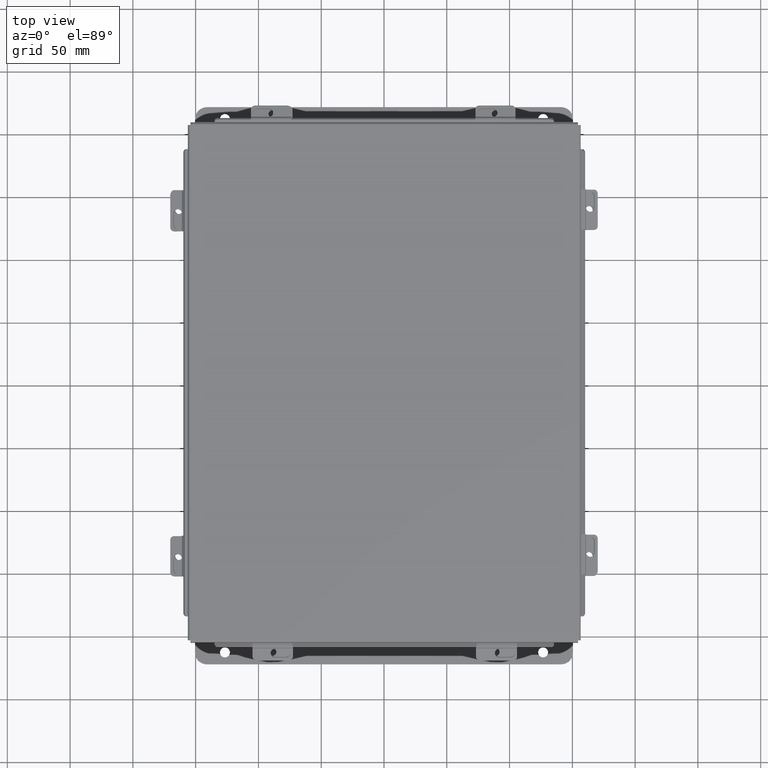
[diagram: clean part render]
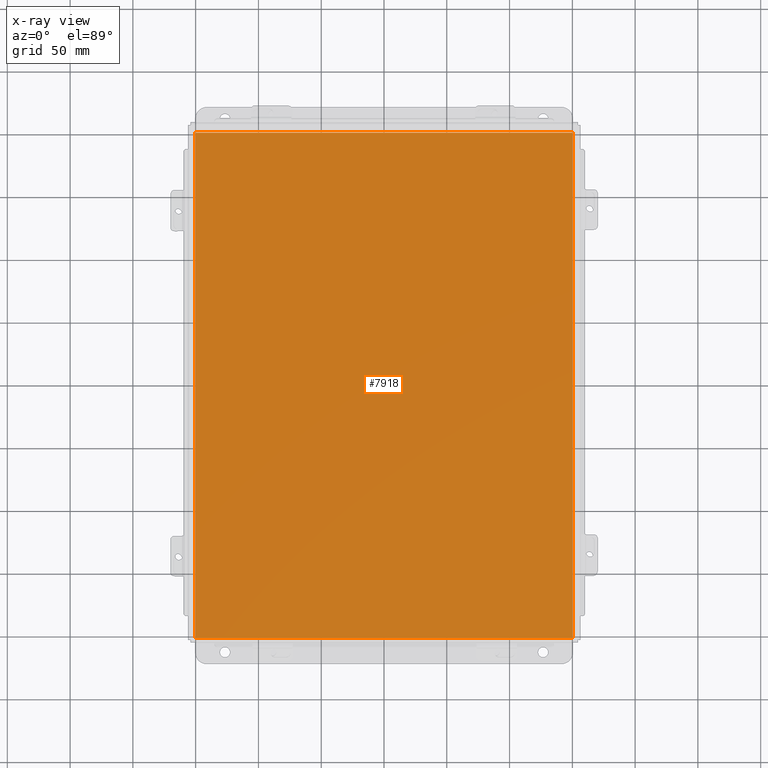
[diagram: x-ray — body ghosted, one internal face saturated and labeled with its STEP entity id]
A machine part, top view, then the same camera in x-ray: the body is ghosted and one INTERNAL B-rep face — a face not visible from any outside direction — is saturated and labeled: STEP entity #7918.
In plain terms, the highlighted planar face has unit normal (0, 0, -1).
Its self-contained STEP definition (entity closure, byte-faithful):
#53 = EDGE_CURVE ( 'NONE', #3757, #3240, #5324, .T. ) ;
#78 = CARTESIAN_POINT ( 'NONE',  ( -5.912300000000000100, -7.925300000000000000, 4.268512490100411300E-017 ) ) ;
#87 = VECTOR ( 'NONE', #4048, 39.37007874015748100 ) ;
#178 = VERTEX_POINT ( 'NONE', #1678 ) ;
#311 = ORIENTED_EDGE ( 'NONE', *, *, #6004, .F. ) ;
#346 = PLANE ( 'NONE',  #4951 ) ;
#597 = EDGE_CURVE ( 'NONE', #4805, #3240, #4528, .T. ) ;
#1678 = CARTESIAN_POINT ( 'NONE',  ( 5.912300000000000100, -7.925300000000000000, 4.268512490100411300E-017 ) ) ;
#1813 = ORIENTED_EDGE ( 'NONE', *, *, #2202, .T. ) ;
#1846 = DIRECTION ( 'NONE',  ( -1.000000000000000000, 0.0000000000000000000, -0.0000000000000000000 ) ) ;
#2035 = FACE_OUTER_BOUND ( 'NONE', #7515, .T. ) ;
#2182 = DIRECTION ( 'NONE',  ( -1.000000000000000000, -0.0000000000000000000, -0.0000000000000000000 ) ) ;
#2202 = EDGE_CURVE ( 'NONE', #4805, #178, #7170, .T. ) ;
#2664 = CARTESIAN_POINT ( 'NONE',  ( 5.912300000000000100, 7.925300000000000000, 4.268512490100411300E-017 ) ) ;
#2717 = VECTOR ( 'NONE', #2949, 39.37007874015748100 ) ;
#2949 = DIRECTION ( 'NONE',  ( -0.0000000000000000000, -1.000000000000000000, -0.0000000000000000000 ) ) ;
#3240 = VERTEX_POINT ( 'NONE', #4844 ) ;
#3757 = VERTEX_POINT ( 'NONE', #6784 ) ;
#4036 = VECTOR ( 'NONE', #2182, 39.37007874015748100 ) ;
#4048 = DIRECTION ( 'NONE',  ( -0.0000000000000000000, 1.000000000000000000, -0.0000000000000000000 ) ) ;
#4528 = LINE ( 'NONE', #7772, #87 ) ;
#4805 = VERTEX_POINT ( 'NONE', #78 ) ;
#4844 = CARTESIAN_POINT ( 'NONE',  ( -5.912300000000000100, 7.925299999999998200, 4.268512490100411300E-017 ) ) ;
#4951 = AXIS2_PLACEMENT_3D ( 'NONE', #5515, #6253, #1846 ) ;
#5025 = LINE ( 'NONE', #2664, #2717 ) ;
#5324 = LINE ( 'NONE', #7933, #4036 ) ;
#5430 = DIRECTION ( 'NONE',  ( 1.000000000000000000, 0.0000000000000000000, 0.0000000000000000000 ) ) ;
#5515 = CARTESIAN_POINT ( 'NONE',  ( 0.0000000000000000000, 0.0000000000000000000, 0.0000000000000000000 ) ) ;
#6004 = EDGE_CURVE ( 'NONE', #3757, #178, #5025, .T. ) ;
#6253 = DIRECTION ( 'NONE',  ( 0.0000000000000000000, 0.0000000000000000000, -1.000000000000000000 ) ) ;
#6784 = CARTESIAN_POINT ( 'NONE',  ( 5.912300000000000100, 7.925299999999997300, 4.268512490100411300E-017 ) ) ;
#7170 = LINE ( 'NONE', #8084, #8203 ) ;
#7515 = EDGE_LOOP ( 'NONE', ( #311, #8991, #8803, #1813 ) ) ;
#7772 = CARTESIAN_POINT ( 'NONE',  ( -5.912300000000000100, -7.925300000000000900, 4.268512490100411300E-017 ) ) ;
#7918 = ADVANCED_FACE ( 'NONE', ( #2035 ), #346, .F. ) ;
#7933 = CARTESIAN_POINT ( 'NONE',  ( -6.000000000000000900, 7.925299999999998200, 0.0000000000000000000 ) ) ;
#8084 = CARTESIAN_POINT ( 'NONE',  ( -6.000000000000000900, -7.925300000000000000, 0.0000000000000000000 ) ) ;
#8203 = VECTOR ( 'NONE', #5430, 39.37007874015748100 ) ;
#8803 = ORIENTED_EDGE ( 'NONE', *, *, #597, .F. ) ;
#8991 = ORIENTED_EDGE ( 'NONE', *, *, #53, .T. ) ;